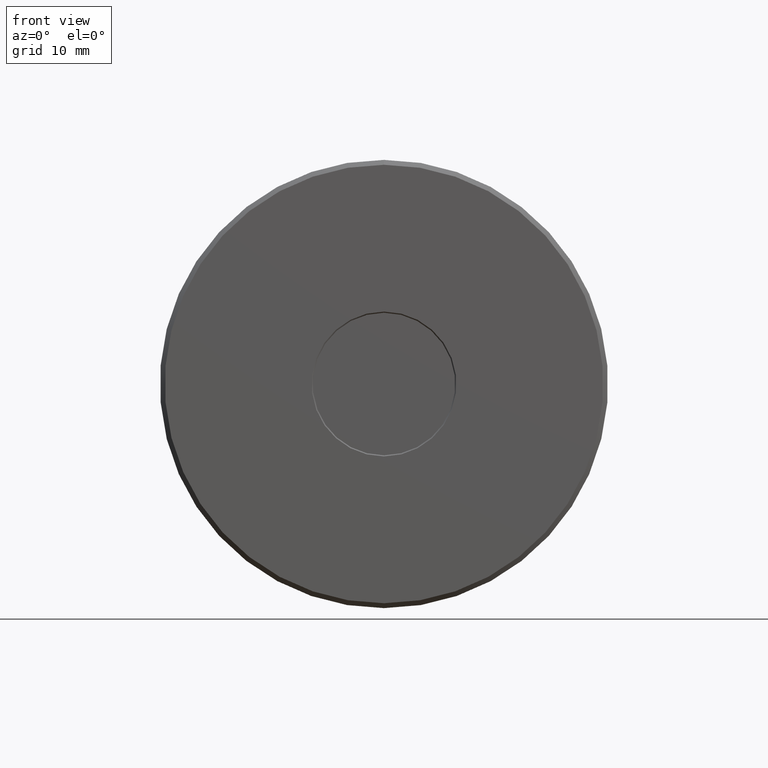
[diagram: clean part render]
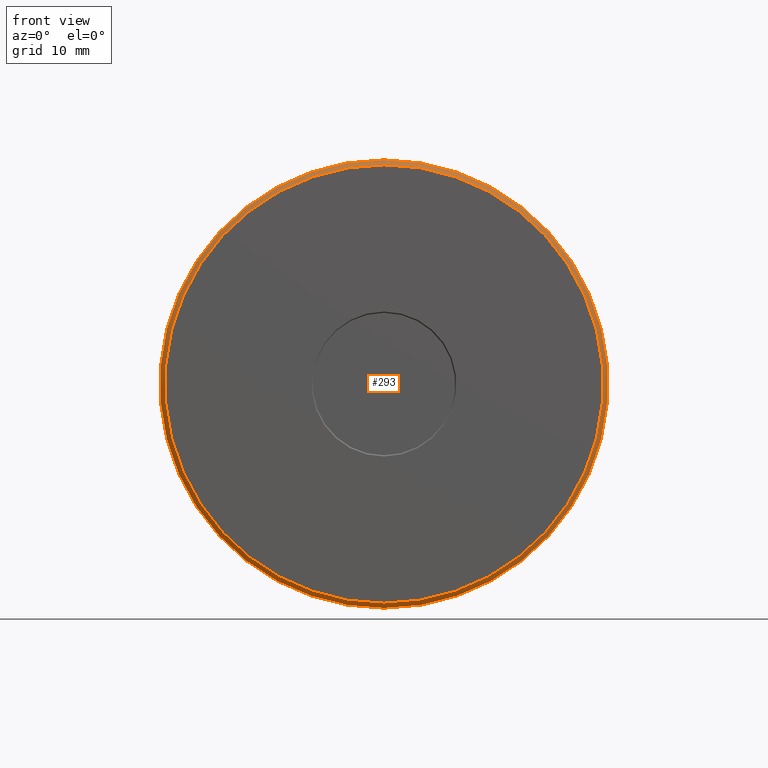
[diagram: same view with one face highlighted and labeled with its STEP entity id]
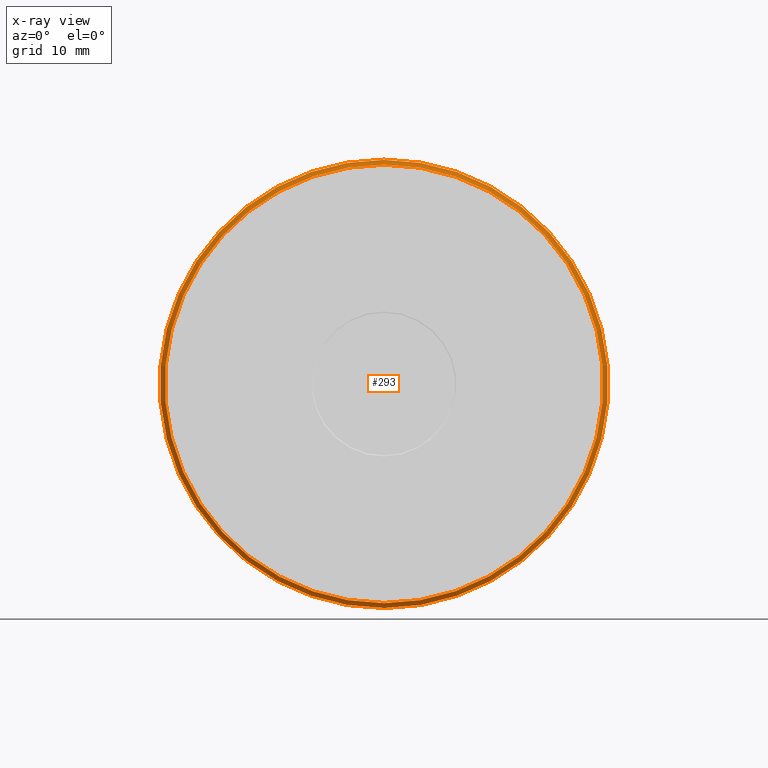
[diagram: x-ray of the same camera — body ghosted, the highlighted face saturated]
A machine part, front view. The second image highlights one B-rep face of the part: STEP entity #293.
The next image is the same camera in x-ray: the body ghosted, the highlighted face saturated — about 0% of this face is hidden behind the body in this view.
In plain terms, the highlighted conical surface has half-angle 45 deg.
Its self-contained STEP definition (entity closure, byte-faithful):
#12 = CIRCLE ( 'NONE', #243, 1.375000000000000000 ) ;
#53 = AXIS2_PLACEMENT_3D ( 'NONE', #159, #446, #198 ) ;
#118 = DIRECTION ( 'NONE',  ( 0.0000000000000000000, 0.0000000000000000000, 1.000000000000000000 ) ) ;
#139 = FACE_BOUND ( 'NONE', #325, .T. ) ;
#152 = DIRECTION ( 'NONE',  ( -0.0000000000000000000, 1.000000000000000000, -0.0000000000000000000 ) ) ;
#156 = CARTESIAN_POINT ( 'NONE',  ( 0.0000000000000000000, 0.03000000000000012700, 0.0000000000000000000 ) ) ;
#159 = CARTESIAN_POINT ( 'NONE',  ( 0.0000000000000000000, -1.333544153312509300E-016, 0.0000000000000000000 ) ) ;
#180 = EDGE_CURVE ( 'NONE', #478, #478, #12, .T. ) ;
#182 = ORIENTED_EDGE ( 'NONE', *, *, #180, .F. ) ;
#198 = DIRECTION ( 'NONE',  ( 0.0000000000000000000, 0.0000000000000000000, 1.000000000000000000 ) ) ;
#202 = EDGE_CURVE ( 'NONE', #330, #330, #443, .T. ) ;
#204 = EDGE_LOOP ( 'NONE', ( #182 ) ) ;
#214 = CONICAL_SURFACE ( 'NONE', #251, 1.375000000000000000, 0.7853981633974431700 ) ;
#231 = FACE_OUTER_BOUND ( 'NONE', #204, .T. ) ;
#243 = AXIS2_PLACEMENT_3D ( 'NONE', #156, #152, #296 ) ;
#251 = AXIS2_PLACEMENT_3D ( 'NONE', #336, #379, #118 ) ;
#293 = ADVANCED_FACE ( 'NONE', ( #139, #231 ), #214, .T. ) ;
#296 = DIRECTION ( 'NONE',  ( 0.0000000000000000000, 0.0000000000000000000, 1.000000000000000000 ) ) ;
#304 = CARTESIAN_POINT ( 'NONE',  ( 0.0000000000000000000, -1.333544153312509300E-016, 1.345000000000000000 ) ) ;
#325 = EDGE_LOOP ( 'NONE', ( #414 ) ) ;
#330 = VERTEX_POINT ( 'NONE', #304 ) ;
#336 = CARTESIAN_POINT ( 'NONE',  ( 0.0000000000000000000, 0.03000000000000012700, 0.0000000000000000000 ) ) ;
#379 = DIRECTION ( 'NONE',  ( -0.0000000000000000000, 1.000000000000000000, -0.0000000000000000000 ) ) ;
#414 = ORIENTED_EDGE ( 'NONE', *, *, #202, .T. ) ;
#423 = CARTESIAN_POINT ( 'NONE',  ( 0.0000000000000000000, 0.03000000000000012700, 1.375000000000000000 ) ) ;
#443 = CIRCLE ( 'NONE', #53, 1.345000000000000000 ) ;
#446 = DIRECTION ( 'NONE',  ( -0.0000000000000000000, 1.000000000000000000, -0.0000000000000000000 ) ) ;
#478 = VERTEX_POINT ( 'NONE', #423 ) ;